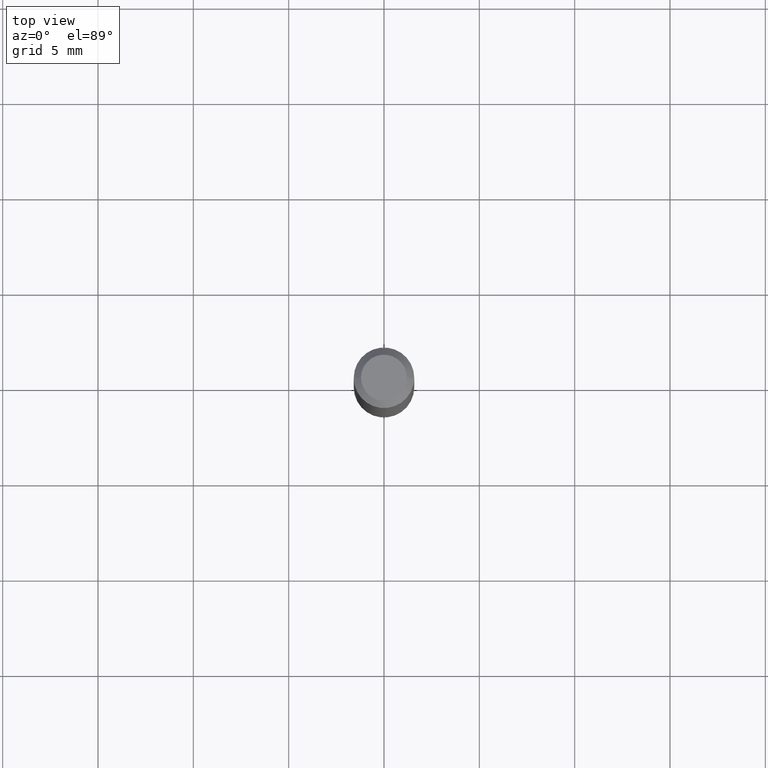
[diagram: clean part render]
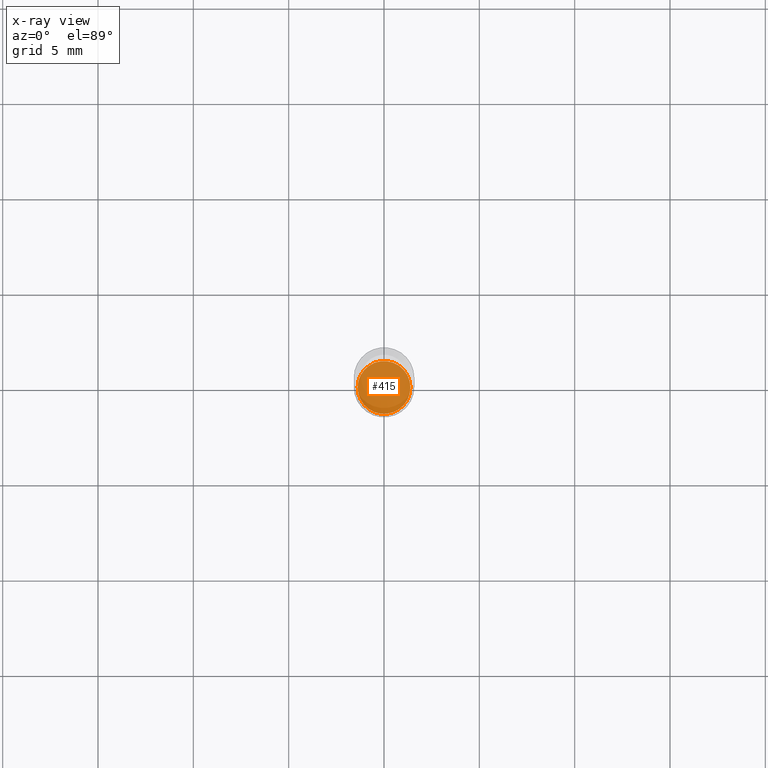
[diagram: x-ray — body ghosted, one internal face saturated and labeled with its STEP entity id]
A machine part, top view, then the same camera in x-ray: the body is ghosted and one INTERNAL B-rep face — a face not visible from any outside direction — is saturated and labeled: STEP entity #415.
In plain terms, the highlighted planar face has unit normal (-0, 0, 1).
Its self-contained STEP definition (entity closure, byte-faithful):
#21 = AXIS2_PLACEMENT_3D ( 'NONE', #344, #140, #260 ) ;
#40 = EDGE_LOOP ( 'NONE', ( #493, #299 ) ) ;
#52 = CIRCLE ( 'NONE', #430, 0.05450000000000009698 ) ;
#53 = VERTEX_POINT ( 'NONE', #512 ) ;
#67 = DIRECTION ( 'NONE',  ( -2.445468806185136597E-29, 3.491481338843145583E-15, 1.000000000000000000 ) ) ;
#85 = DIRECTION ( 'NONE',  ( 1.000000000000000000, -6.982962677686276177E-15, 0.000000000000000000 ) ) ;
#94 = PLANE ( 'NONE',  #21 ) ;
#134 = CARTESIAN_POINT ( 'NONE',  ( 2.861198503236610065E-29, -4.085033166446480067E-15, -1.170000000000000151 ) ) ;
#140 = DIRECTION ( 'NONE',  ( -2.438088387897960049E-29, 3.491481338843145188E-15, 1.000000000000000000 ) ) ;
#167 = EDGE_CURVE ( 'NONE', #53, #388, #52, .T. ) ;
#182 = FACE_OUTER_BOUND ( 'NONE', #40, .T. ) ;
#232 = DIRECTION ( 'NONE',  ( 1.000000000000000000, -6.982962677686276177E-15, 0.000000000000000000 ) ) ;
#260 = DIRECTION ( 'NONE',  ( 1.000000000000000000, -6.982962677686265922E-15, 4.876176775795935793E-29 ) ) ;
#283 = CIRCLE ( 'NONE', #446, 0.05450000000000009698 ) ;
#284 = EDGE_CURVE ( 'NONE', #388, #53, #283, .T. ) ;
#299 = ORIENTED_EDGE ( 'NONE', *, *, #167, .F. ) ;
#344 = CARTESIAN_POINT ( 'NONE',  ( 2.861198503236610065E-29, -4.085033166446480067E-15, -1.170000000000000151 ) ) ;
#382 = DIRECTION ( 'NONE',  ( -2.445468806185136597E-29, 3.491481338843145583E-15, 1.000000000000000000 ) ) ;
#388 = VERTEX_POINT ( 'NONE', #461 ) ;
#415 = ADVANCED_FACE ( 'NONE', ( #182 ), #94, .F. ) ;
#430 = AXIS2_PLACEMENT_3D ( 'NONE', #134, #67, #232 ) ;
#446 = AXIS2_PLACEMENT_3D ( 'NONE', #477, #382, #85 ) ;
#461 = CARTESIAN_POINT ( 'NONE',  ( 0.05450000000000009698, -4.465604632380382834E-15, -1.170000000000000151 ) ) ;
#477 = CARTESIAN_POINT ( 'NONE',  ( 2.861198503236610065E-29, -4.085033166446480067E-15, -1.170000000000000151 ) ) ;
#493 = ORIENTED_EDGE ( 'NONE', *, *, #284, .F. ) ;
#512 = CARTESIAN_POINT ( 'NONE',  ( -0.05450000000000009698, -3.695138148283113527E-15, -1.170000000000000151 ) ) ;